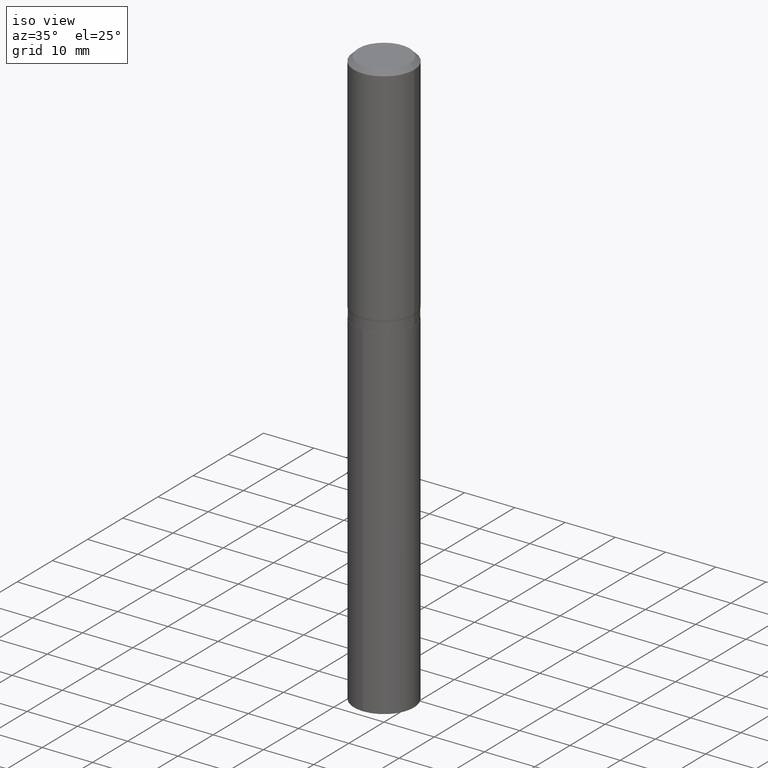
[diagram: clean part render]
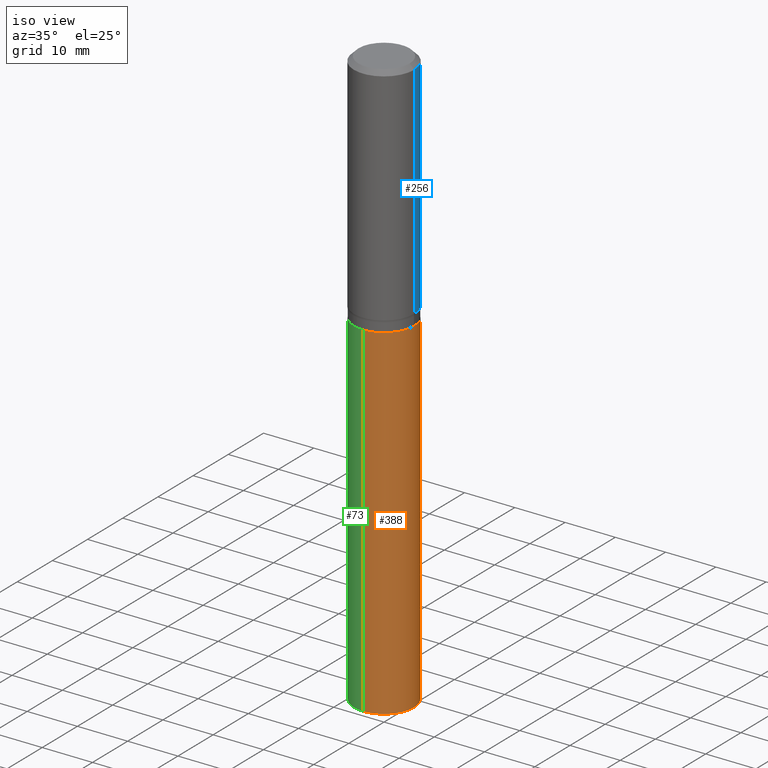
[diagram: same view with three faces highlighted in distinct colors, each labeled with its STEP entity id]
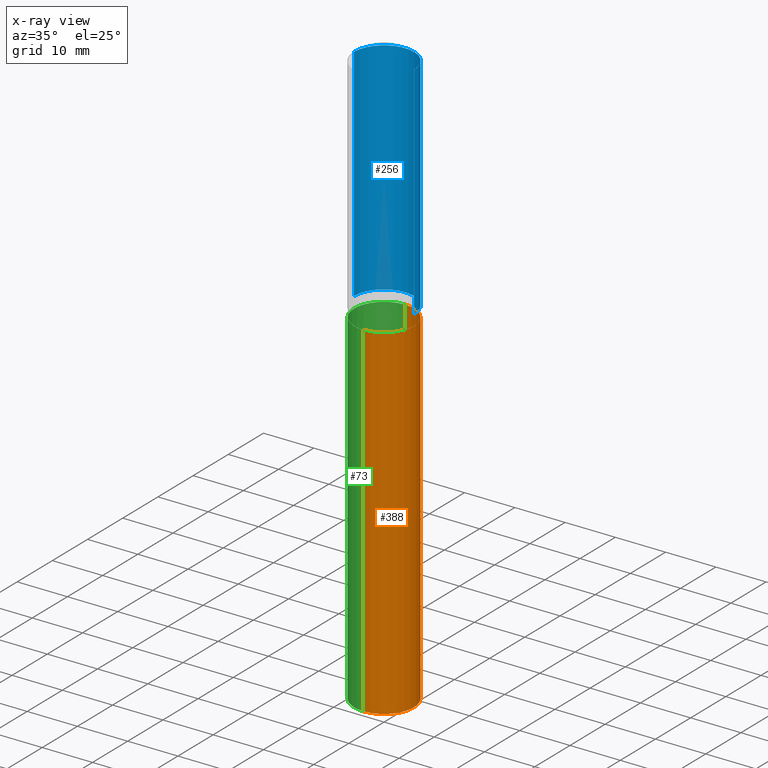
[diagram: x-ray of the same camera — body ghosted, the three highlighted faces saturated]
A machine part, iso view with three faces highlighted in distinct colors.
The next image is the same camera in x-ray (body ghosted, the three faces saturated) — at least one of them is partly hidden behind the body in this view.
Their STEP definitions:

[orange] entity #388 — the highlighted cylindrical surface (edge-blend (fillet) strip) has radius 5.9538 mm, axis along (-0, 0, 1).
#12 = DIRECTION ( 'NONE',  ( -2.445500418840969907E-29, 3.491436067720712344E-15, 1.000000000000000000 ) ) ;
#27 = EDGE_CURVE ( 'NONE', #285, #177, #134, .T. ) ;
#36 = CARTESIAN_POINT ( 'NONE',  ( 1.665512172621786440E-15, 0.2343999999999841766, -4.551296252664241315 ) ) ;
#50 = FACE_OUTER_BOUND ( 'NONE', #318, .T. ) ;
#52 = LINE ( 'NONE', #355, #104 ) ;
#53 = ORIENTED_EDGE ( 'NONE', *, *, #266, .F. ) ;
#61 = DIRECTION ( 'NONE',  ( -2.445500418840969907E-29, 3.491436067720711950E-15, 1.000000000000000000 ) ) ;
#71 = CARTESIAN_POINT ( 'NONE',  ( 4.525829119606832626E-29, -6.461684513797009689E-15, -1.850700000000000012 ) ) ;
#75 = CARTESIAN_POINT ( 'NONE',  ( -1.636806451649615354E-15, -0.2344000000000064643, -1.850699999999999124 ) ) ;
#95 = VECTOR ( 'NONE', #12, 39.37007874015748143 ) ;
#103 = VERTEX_POINT ( 'NONE', #288 ) ;
#104 = VECTOR ( 'NONE', #362, 39.37007874015748143 ) ;
#134 = CIRCLE ( 'NONE', #337, 0.2343999999999999972 ) ;
#160 = LINE ( 'NONE', #201, #95 ) ;
#168 = ORIENTED_EDGE ( 'NONE', *, *, #436, .T. ) ;
#170 = CARTESIAN_POINT ( 'NONE',  ( 1.113013838661758567E-28, -1.589064367470033454E-14, -4.551296252664240427 ) ) ;
#177 = VERTEX_POINT ( 'NONE', #36 ) ;
#197 = CARTESIAN_POINT ( 'NONE',  ( 4.525829119606832626E-29, -6.461684513797009689E-15, -1.850700000000000012 ) ) ;
#201 = CARTESIAN_POINT ( 'NONE',  ( -1.636806451649615354E-15, -0.2344000000000064643, -1.850699999999999124 ) ) ;
#202 = VERTEX_POINT ( 'NONE', #75 ) ;
#209 = DIRECTION ( 'NONE',  ( -2.445500418840969907E-29, 3.491436067720711950E-15, 1.000000000000000000 ) ) ;
#228 = AXIS2_PLACEMENT_3D ( 'NONE', #71, #61, #405 ) ;
#239 = CARTESIAN_POINT ( 'NONE',  ( -1.636806451649549484E-15, -0.2344000000000159567, -4.551296252664239539 ) ) ;
#266 = EDGE_CURVE ( 'NONE', #285, #202, #160, .T. ) ;
#278 = ORIENTED_EDGE ( 'NONE', *, *, #492, .F. ) ;
#285 = VERTEX_POINT ( 'NONE', #239 ) ;
#288 = CARTESIAN_POINT ( 'NONE',  ( 1.665512172621786637E-15, 0.2343999999999935857, -1.850700000000000900 ) ) ;
#318 = EDGE_LOOP ( 'NONE', ( #369, #168, #278, #53 ) ) ;
#331 = DIRECTION ( 'NONE',  ( -6.982962677686265922E-15, -1.000000000000000000, 2.330928322239132474E-15 ) ) ;
#337 = AXIS2_PLACEMENT_3D ( 'NONE', #170, #441, #331 ) ;
#355 = CARTESIAN_POINT ( 'NONE',  ( 1.665512172621719978E-15, 0.2343999999999935302, -1.850700000000000900 ) ) ;
#362 = DIRECTION ( 'NONE',  ( -2.445500418840969907E-29, 3.491436067720712344E-15, 1.000000000000000000 ) ) ;
#369 = ORIENTED_EDGE ( 'NONE', *, *, #27, .T. ) ;
#373 = AXIS2_PLACEMENT_3D ( 'NONE', #197, #209, #425 ) ;
#388 = ADVANCED_FACE ( 'NONE', ( #50 ), #397, .T. ) ;
#397 = CYLINDRICAL_SURFACE ( 'NONE', #373, 0.2343999999999999972 ) ;
#405 = DIRECTION ( 'NONE',  ( -6.982962677686265922E-15, -1.000000000000000000, 3.496392483358698711E-15 ) ) ;
#425 = DIRECTION ( 'NONE',  ( -6.982962677686265922E-15, -1.000000000000000000, 3.496392483358698711E-15 ) ) ;
#436 = EDGE_CURVE ( 'NONE', #177, #103, #52, .T. ) ;
#441 = DIRECTION ( 'NONE',  ( -2.445500418840969907E-29, 3.491436067720711950E-15, 1.000000000000000000 ) ) ;
#464 = CIRCLE ( 'NONE', #228, 0.2343999999999999972 ) ;
#492 = EDGE_CURVE ( 'NONE', #202, #103, #464, .T. ) ;

[blue] entity #256 — the highlighted cylindrical surface (partial cylindrical patch) has radius 5.9995 mm, axis along (-0, 0, 1).
#23 = CARTESIAN_POINT ( 'NONE',  ( -0.2362000000000002153, -4.479762893647714438E-15, -1.763739867947701212 ) ) ;
#26 = LINE ( 'NONE', #64, #359 ) ;
#33 = CARTESIAN_POINT ( 'NONE',  ( 4.313170829291195543E-29, -6.158064835513072410E-15, -1.763739867947701212 ) ) ;
#44 = CARTESIAN_POINT ( 'NONE',  ( 0.000000000000000000, 0.000000000000000000, 0.000000000000000000 ) ) ;
#48 = EDGE_CURVE ( 'NONE', #223, #316, #26, .T. ) ;
#57 = CARTESIAN_POINT ( 'NONE',  ( 0.2361999999999999933, -1.773078968304709514E-15, -0.03543000000000021826 ) ) ;
#64 = CARTESIAN_POINT ( 'NONE',  ( 0.2362000000000001043, -1.649375784469496920E-15, 1.151752954443000508E-29 ) ) ;
#84 = EDGE_LOOP ( 'NONE', ( #466, #159, #469, #221 ) ) ;
#97 = EDGE_CURVE ( 'NONE', #481, #142, #484, .T. ) ;
#114 = CARTESIAN_POINT ( 'NONE',  ( -0.2361999999999999933, -1.462582067808785220E-15, -0.03543000000000021826 ) ) ;
#142 = VERTEX_POINT ( 'NONE', #114 ) ;
#143 = VECTOR ( 'NONE', #371, 39.37007874015748143 ) ;
#159 = ORIENTED_EDGE ( 'NONE', *, *, #97, .T. ) ;
#171 = CIRCLE ( 'NONE', #446, 0.2362000000000002153 ) ;
#187 = EDGE_CURVE ( 'NONE', #316, #142, #390, .T. ) ;
#188 = DIRECTION ( 'NONE',  ( -2.445468806185136597E-29, 3.491481338843145583E-15, 1.000000000000000000 ) ) ;
#196 = DIRECTION ( 'NONE',  ( 1.000000000000000000, -6.982962677686266711E-15, 0.000000000000000000 ) ) ;
#211 = EDGE_CURVE ( 'NONE', #223, #481, #171, .T. ) ;
#221 = ORIENTED_EDGE ( 'NONE', *, *, #48, .F. ) ;
#223 = VERTEX_POINT ( 'NONE', #418 ) ;
#226 = CARTESIAN_POINT ( 'NONE',  ( -0.2362000000000001043, 1.678301941865357380E-15, -1.161852468318209317E-29 ) ) ;
#236 = CARTESIAN_POINT ( 'NONE',  ( 8.664295980313991736E-31, -1.237031838352134079E-16, -0.03543000000000021826 ) ) ;
#256 = ADVANCED_FACE ( 'NONE', ( #274 ), #385, .T. ) ;
#274 = FACE_OUTER_BOUND ( 'NONE', #84, .T. ) ;
#280 = DIRECTION ( 'NONE',  ( -2.445468806185136597E-29, 3.491481338843145583E-15, 1.000000000000000000 ) ) ;
#316 = VERTEX_POINT ( 'NONE', #57 ) ;
#317 = DIRECTION ( 'NONE',  ( 1.000000000000000000, -6.982962677686266711E-15, 4.876176775795935793E-29 ) ) ;
#335 = DIRECTION ( 'NONE',  ( -2.445468806185136877E-29, 3.491481338843145188E-15, 1.000000000000000000 ) ) ;
#342 = DIRECTION ( 'NONE',  ( 1.000000000000000000, -6.982962677686266711E-15, 0.000000000000000000 ) ) ;
#359 = VECTOR ( 'NONE', #335, 39.37007874015748143 ) ;
#371 = DIRECTION ( 'NONE',  ( -2.445468806185136877E-29, 3.491481338843145188E-15, 1.000000000000000000 ) ) ;
#372 = AXIS2_PLACEMENT_3D ( 'NONE', #44, #280, #317 ) ;
#382 = AXIS2_PLACEMENT_3D ( 'NONE', #236, #414, #196 ) ;
#385 = CYLINDRICAL_SURFACE ( 'NONE', #372, 0.2362000000000001043 ) ;
#390 = CIRCLE ( 'NONE', #382, 0.2361999999999999933 ) ;
#414 = DIRECTION ( 'NONE',  ( -2.445468806185136597E-29, 3.491481338843145583E-15, 1.000000000000000000 ) ) ;
#418 = CARTESIAN_POINT ( 'NONE',  ( 0.2362000000000002153, -7.807440619982569724E-15, -1.763739867947701212 ) ) ;
#446 = AXIS2_PLACEMENT_3D ( 'NONE', #33, #188, #342 ) ;
#466 = ORIENTED_EDGE ( 'NONE', *, *, #211, .T. ) ;
#469 = ORIENTED_EDGE ( 'NONE', *, *, #187, .F. ) ;
#481 = VERTEX_POINT ( 'NONE', #23 ) ;
#484 = LINE ( 'NONE', #226, #143 ) ;

[green] entity #73 — the highlighted cylindrical surface (edge-blend (fillet) strip) has radius 5.9538 mm, axis along (-0, 0, 1).
#12 = DIRECTION ( 'NONE',  ( -2.445500418840969907E-29, 3.491436067720712344E-15, 1.000000000000000000 ) ) ;
#13 = ORIENTED_EDGE ( 'NONE', *, *, #467, .T. ) ;
#21 = AXIS2_PLACEMENT_3D ( 'NONE', #265, #216, #174 ) ;
#36 = CARTESIAN_POINT ( 'NONE',  ( 1.665512172621786440E-15, 0.2343999999999841766, -4.551296252664241315 ) ) ;
#47 = CIRCLE ( 'NONE', #192, 0.2343999999999999972 ) ;
#52 = LINE ( 'NONE', #355, #104 ) ;
#60 = ORIENTED_EDGE ( 'NONE', *, *, #436, .F. ) ;
#72 = FACE_OUTER_BOUND ( 'NONE', #89, .T. ) ;
#73 = ADVANCED_FACE ( 'NONE', ( #72 ), #136, .T. ) ;
#75 = CARTESIAN_POINT ( 'NONE',  ( -1.636806451649615354E-15, -0.2344000000000064643, -1.850699999999999124 ) ) ;
#89 = EDGE_LOOP ( 'NONE', ( #60, #13, #287, #248 ) ) ;
#95 = VECTOR ( 'NONE', #12, 39.37007874015748143 ) ;
#102 = EDGE_CURVE ( 'NONE', #103, #202, #47, .T. ) ;
#103 = VERTEX_POINT ( 'NONE', #288 ) ;
#104 = VECTOR ( 'NONE', #362, 39.37007874015748143 ) ;
#136 = CYLINDRICAL_SURFACE ( 'NONE', #21, 0.2343999999999999972 ) ;
#160 = LINE ( 'NONE', #201, #95 ) ;
#167 = DIRECTION ( 'NONE',  ( -2.445500418840969907E-29, 3.491436067720711950E-15, 1.000000000000000000 ) ) ;
#174 = DIRECTION ( 'NONE',  ( -6.982962677686265922E-15, -1.000000000000000000, 3.496392483358698711E-15 ) ) ;
#176 = CARTESIAN_POINT ( 'NONE',  ( 1.113013838661758567E-28, -1.589064367470033454E-14, -4.551296252664240427 ) ) ;
#177 = VERTEX_POINT ( 'NONE', #36 ) ;
#182 = CARTESIAN_POINT ( 'NONE',  ( 4.525829119606832626E-29, -6.461684513797009689E-15, -1.850700000000000012 ) ) ;
#192 = AXIS2_PLACEMENT_3D ( 'NONE', #182, #339, #488 ) ;
#201 = CARTESIAN_POINT ( 'NONE',  ( -1.636806451649615354E-15, -0.2344000000000064643, -1.850699999999999124 ) ) ;
#202 = VERTEX_POINT ( 'NONE', #75 ) ;
#216 = DIRECTION ( 'NONE',  ( -2.445500418840969907E-29, 3.491436067720711950E-15, 1.000000000000000000 ) ) ;
#239 = CARTESIAN_POINT ( 'NONE',  ( -1.636806451649549484E-15, -0.2344000000000159567, -4.551296252664239539 ) ) ;
#248 = ORIENTED_EDGE ( 'NONE', *, *, #102, .F. ) ;
#250 = AXIS2_PLACEMENT_3D ( 'NONE', #176, #167, #485 ) ;
#265 = CARTESIAN_POINT ( 'NONE',  ( 4.525829119606832626E-29, -6.461684513797009689E-15, -1.850700000000000012 ) ) ;
#266 = EDGE_CURVE ( 'NONE', #285, #202, #160, .T. ) ;
#285 = VERTEX_POINT ( 'NONE', #239 ) ;
#287 = ORIENTED_EDGE ( 'NONE', *, *, #266, .T. ) ;
#288 = CARTESIAN_POINT ( 'NONE',  ( 1.665512172621786637E-15, 0.2343999999999935857, -1.850700000000000900 ) ) ;
#339 = DIRECTION ( 'NONE',  ( -2.445500418840969907E-29, 3.491436067720711950E-15, 1.000000000000000000 ) ) ;
#355 = CARTESIAN_POINT ( 'NONE',  ( 1.665512172621719978E-15, 0.2343999999999935302, -1.850700000000000900 ) ) ;
#362 = DIRECTION ( 'NONE',  ( -2.445500418840969907E-29, 3.491436067720712344E-15, 1.000000000000000000 ) ) ;
#436 = EDGE_CURVE ( 'NONE', #177, #103, #52, .T. ) ;
#467 = EDGE_CURVE ( 'NONE', #177, #285, #473, .T. ) ;
#473 = CIRCLE ( 'NONE', #250, 0.2343999999999999972 ) ;
#485 = DIRECTION ( 'NONE',  ( -6.982962677686265922E-15, -1.000000000000000000, 2.330928322239132474E-15 ) ) ;
#488 = DIRECTION ( 'NONE',  ( -6.982962677686265922E-15, -1.000000000000000000, 3.496392483358698711E-15 ) ) ;